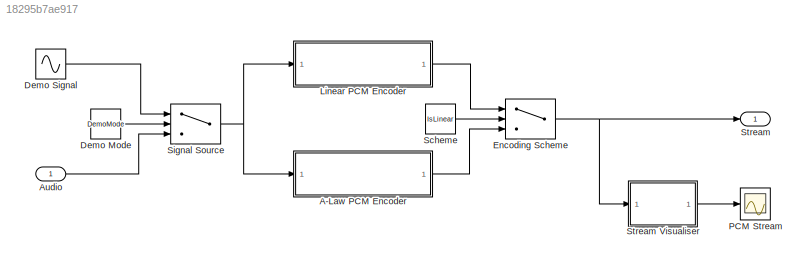
MODEL slx_18295b7ae917
KIND model
CONFIG AbsTol = auto
CONFIG EnableMultiTasking = off
CONFIG FixedStep = 1/(48e-7)
CONFIG MaxStep = 1e-5
CONFIG MinStep = auto
CONFIG RelTol = 1e-3
CONFIG SampleTimeConstraint = Unconstrained
CONFIG SolverName = VariableStepAuto
CONFIG StartTime = 0.0
CONFIG StopTime = 1e-3 - eps
WORKSPACE source: mxarray member
WORKSPACE BitDepth = 4
WORKSPACE DecimationFactor = 3
WORKSPACE DemoMode = 1
WORKSPACE Dithering = 0
WORKSPACE FirDenominatorCoefficients = [1 1]
WORKSPACE FirNumeratorCoefficients = [1 1]
WORKSPACE IsLinear = 1
WORKSPACE LowerSaturation = -2.5
WORKSPACE SampleRate = 48000
WORKSPACE UpperSaturation = 2.5
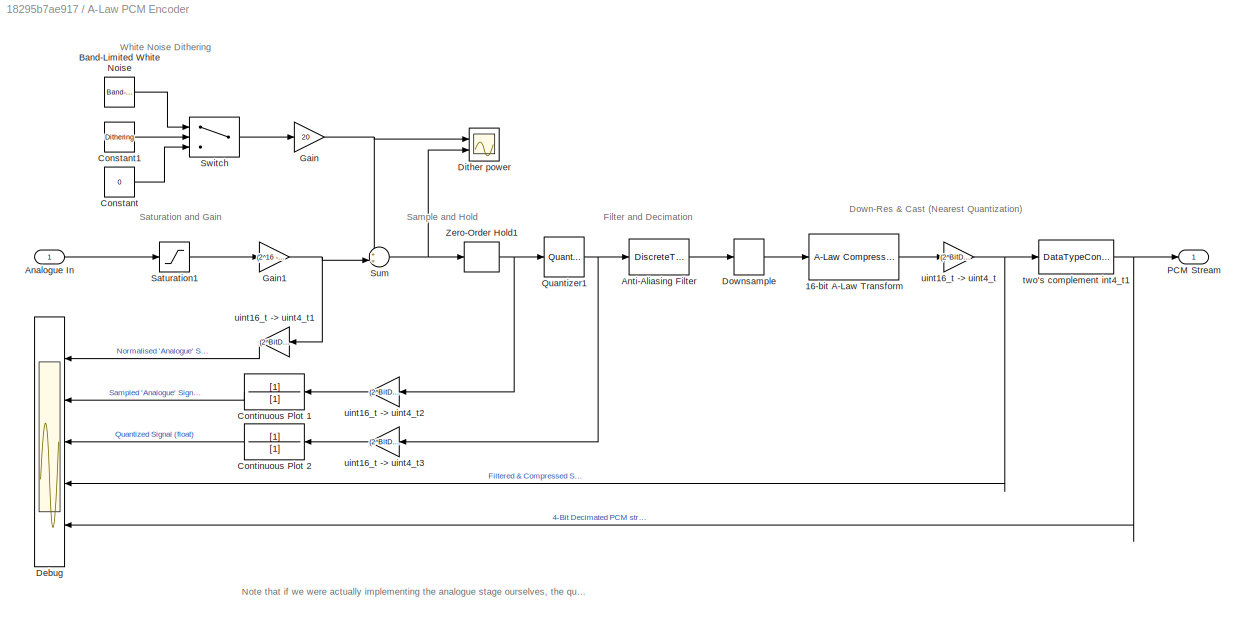
BLOCK [SubSystem] A-Law PCM Encoder
  Ports = [1, 1]
  RequestExecContextInheritance = off
BLOCK [Reference] A-Law PCM Encoder/16-bit A-Law Transform  REF=commsrccod2/A-Law
Compressor
  Ports = [1, 1]
  SourceBlock = commsrccod2/A-Law\nCompressor
  SourceProductBaseCode = CM
  SourceType = A-Law Compressor
BLOCK [Inport] A-Law PCM Encoder/Analogue In
BLOCK [DiscreteTransferFcn] A-Law PCM Encoder/Anti-Aliasing Filter
  Denominator = FirDenominatorCoefficients
  InputPortMap = u0
  Numerator = FirNumeratorCoefficients
  Ports = [1, 1]
BLOCK [Reference] A-Law PCM Encoder/Band-Limited White Noise  REF=simulink/Sources/Band-Limited
White Noise
  Ports = [0, 1]
  SourceBlock = simulink/Sources/Band-Limited\nWhite Noise
  SourceProductBaseCode = SL
  SourceType = Band-Limited White Noise.
BLOCK [Constant] A-Law PCM Encoder/Constant
  SampleTime = 1/SampleRate
  Value = 0
BLOCK [Constant] A-Law PCM Encoder/Constant1
  Value = Dithering
BLOCK [TransferFcn] A-Law PCM Encoder/Continuous Plot 1
  ContinuousStateAttributes = ''Continuous"
  Denominator = [1]
BLOCK [TransferFcn] A-Law PCM Encoder/Continuous Plot 2
  ContinuousStateAttributes = ''Continuous"
  Denominator = [1]
BLOCK [Scope] A-Law PCM Encoder/Debug
  DefaultConfigurationName = spbscopes.TimeScopeBlockCfg
  Floating = off
  NumInputPorts = 5
  Ports = [5]
  ScopeSpecificationString = spbscopes.TimeScopeBlockCfg('CurrentConfiguration', extmgr.ConfigurationSet(extmgr.Configuration('Core','General UI',true,'DisplayFullSourceName',true),extmgr.Configuration('Core','Source UI',true),extmgr.Configuration('Sources','WiredSimulink',true,'DataLoggingVariableName','ScopeData1'),extmgr.Configuration('Visuals','Time Domain',true,'DisplayPropertyDefaults',struct('MinYLimReal','-8.75','MaxY...<+2100ch>
  UserDataPersistent = on
BLOCK [Scope] A-Law PCM Encoder/Dither power
  DefaultConfigurationName = spbscopes.TimeScopeBlockCfg
  Floating = off
  NumInputPorts = 2
  Ports = [2]
  ScopeSpecificationString = spbscopes.TimeScopeBlockCfg('CurrentConfiguration', extmgr.ConfigurationSet(extmgr.Configuration('Core','General UI',true),extmgr.Configuration('Core','Source UI',true),extmgr.Configuration('Sources','WiredSimulink',true,'DataLoggingVariableName','ScopeData1'),extmgr.Configuration('Visuals','Time Domain',true,'DisplayPropertyDefaults',struct('MinYLimReal','-44228.3949','MaxYLimReal','43369.65792',...<+1566ch>
  UserDataPersistent = on
BLOCK [DownSample] A-Law PCM Encoder/Downsample
  InputProcessing = Elements as channels (sample based)
  N = DecimationFactor
  RateOptions = Allow multirate processing
BLOCK [Gain] A-Law PCM Encoder/Gain
  Gain = 20
BLOCK [Gain] A-Law PCM Encoder/Gain1
  Gain = (2^16 - 2)/(UpperSaturation - LowerSaturation)
BLOCK [Outport] A-Law PCM Encoder/PCM Stream
BLOCK [Quantizer] A-Law PCM Encoder/Quantizer1
  LinearizeAsGain = off
  QuantizationInterval = 1
BLOCK [Saturate] A-Law PCM Encoder/Saturation1
  LowerLimit = -2.5
  UpperLimit = 2.5
BLOCK [Sum] A-Law PCM Encoder/Sum
  Inputs = ++|
  Ports = [2, 1]
BLOCK [Switch] A-Law PCM Encoder/Switch
  Criteria = u2 > Threshold
  InputSameDT = off
  SaturateOnIntegerOverflow = off
BLOCK [ZeroOrderHold] A-Law PCM Encoder/Zero-Order Hold1
  SampleTime = 1/SampleRate
BLOCK [DataTypeConversion] A-Law PCM Encoder/two's complement int4_t1
  OutDataTypeStr = int16
  RndMeth = Nearest
  SaturateOnIntegerOverflow = off
BLOCK [Gain] A-Law PCM Encoder/uint16_t -> uint4_t
  Gain = (2^BitDepth - 2)/(2^16 - 2)
BLOCK [Gain] A-Law PCM Encoder/uint16_t -> uint4_t1
  Gain = (2^BitDepth - 2)/(2^16 - 2)
BLOCK [Gain] A-Law PCM Encoder/uint16_t -> uint4_t2
  Gain = (2^BitDepth - 2)/(2^16 - 2)
BLOCK [Gain] A-Law PCM Encoder/uint16_t -> uint4_t3
  Gain = (2^BitDepth - 2)/(2^16 - 2)
BLOCK [Inport] Audio
  SampleTime = 1/SampleRate
BLOCK [Constant] Demo Mode
  Value = DemoMode
BLOCK [Sin] Demo Signal
  Amplitude = 2.4
  Frequency = 2*pi*2000
  Ports = [0, 1]
  SampleTime = 1/SampleRate
BLOCK [Switch] Encoding Scheme
  Criteria = u2 > Threshold
  InputSameDT = off
  SaturateOnIntegerOverflow = off
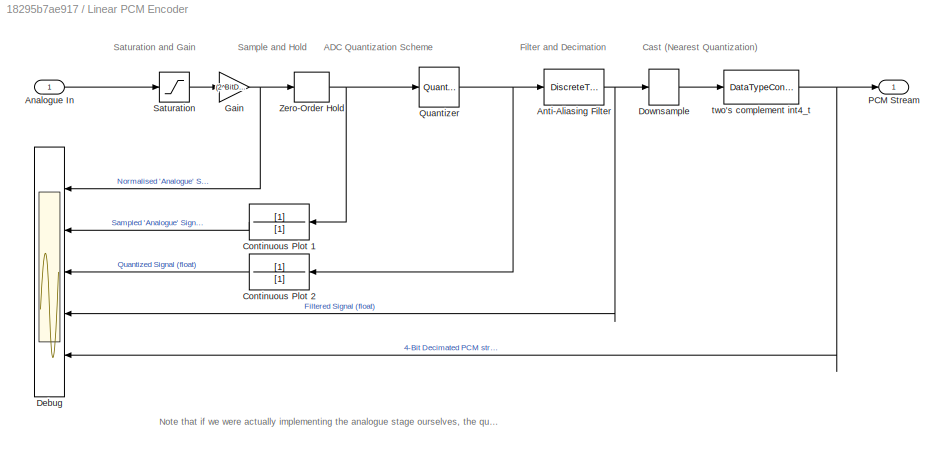
BLOCK [SubSystem] Linear PCM Encoder
  Ports = [1, 1]
  RequestExecContextInheritance = off
BLOCK [Inport] Linear PCM Encoder/Analogue In
BLOCK [DiscreteTransferFcn] Linear PCM Encoder/Anti-Aliasing Filter
  Denominator = FirDenominatorCoefficients
  InputPortMap = u0
  Numerator = FirNumeratorCoefficients
  Ports = [1, 1]
BLOCK [TransferFcn] Linear PCM Encoder/Continuous Plot 1
  ContinuousStateAttributes = ''Continuous"
  Denominator = [1]
BLOCK [TransferFcn] Linear PCM Encoder/Continuous Plot 2
  ContinuousStateAttributes = ''Continuous"
  Denominator = [1]
BLOCK [Scope] Linear PCM Encoder/Debug
  DefaultConfigurationName = spbscopes.TimeScopeBlockCfg
  Floating = off
  NumInputPorts = 5
  Ports = [5]
  ScopeSpecificationString = spbscopes.TimeScopeBlockCfg('CurrentConfiguration', extmgr.ConfigurationSet(extmgr.Configuration('Core','General UI',true,'DisplayFullSourceName',true),extmgr.Configuration('Core','Source UI',true),extmgr.Configuration('Sources','WiredSimulink',true,'DataLoggingVariableName','ScopeData2'),extmgr.Configuration('Visuals','Time Domain',true,'DisplayPropertyDefaults',struct('MinYLimReal','-6.61473','M...<+2152ch>
  UserDataPersistent = on
BLOCK [DownSample] Linear PCM Encoder/Downsample
  InputProcessing = Elements as channels (sample based)
  N = DecimationFactor
  RateOptions = Allow multirate processing
BLOCK [Gain] Linear PCM Encoder/Gain
  Gain = (2^BitDepth - 2)/(UpperSaturation - LowerSaturation)
BLOCK [Outport] Linear PCM Encoder/PCM Stream
BLOCK [Quantizer] Linear PCM Encoder/Quantizer
  LinearizeAsGain = off
  QuantizationInterval = 1
BLOCK [Saturate] Linear PCM Encoder/Saturation
  LowerLimit = -2.5
  UpperLimit = 2.5
BLOCK [ZeroOrderHold] Linear PCM Encoder/Zero-Order Hold
  SampleTime = 1/SampleRate
BLOCK [DataTypeConversion] Linear PCM Encoder/two's complement int4_t
  OutDataTypeStr = int16
  RndMeth = Nearest
  SaturateOnIntegerOverflow = off
BLOCK [Scope] PCM Stream
  Floating = off
  NumInputPorts = 1
  Ports = [1]
  ScopeSpecificationString = Simulink.scopes.TimeScopeBlockCfg('CurrentConfiguration', extmgr.ConfigurationSet(extmgr.Configuration('Core','General UI',true,'DisplayFullSourceName',true),extmgr.Configuration('Core','Source UI',true),extmgr.Configuration('Sources','WiredSimulink',true,'DataLoggingVariableName','ScopeData1'),extmgr.Configuration('Visuals','Time Domain',true,'SerializedDisplays',{struct('MinYLimReal','-0.875','M...<+1570ch>
BLOCK [Constant] Scheme
  Value = IsLinear
BLOCK [Switch] Signal Source
  Criteria = u2 > Threshold
  InputSameDT = off
  SaturateOnIntegerOverflow = off
BLOCK [Outport] Stream
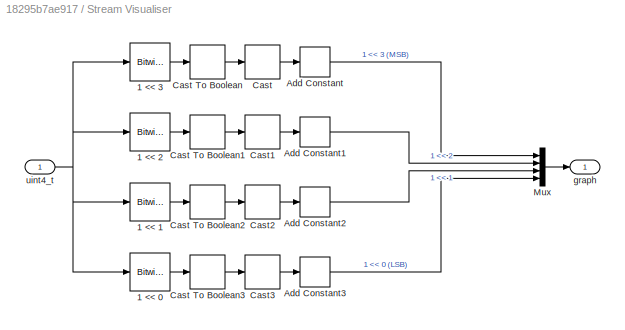
BLOCK [SubSystem] Stream Visualiser
  Ports = [1, 1]
  RequestExecContextInheritance = off
BLOCK [Reference] Stream Visualiser/1 << 0  REF=simulink/Logic and Bit
Operations/Bitwise
Operator
  Ports = [1, 1]
  SourceBlock = simulink/Logic and Bit\nOperations/Bitwise\nOperator
  SourceProductBaseCode = SL
  SourceType = Bitwise Operator
BLOCK [Reference] Stream Visualiser/1 << 1  REF=simulink/Logic and Bit
Operations/Bitwise
Operator
  Ports = [1, 1]
  SourceBlock = simulink/Logic and Bit\nOperations/Bitwise\nOperator
  SourceProductBaseCode = SL
  SourceType = Bitwise Operator
BLOCK [Reference] Stream Visualiser/1 << 2  REF=simulink/Logic and Bit
Operations/Bitwise
Operator
  Ports = [1, 1]
  SourceBlock = simulink/Logic and Bit\nOperations/Bitwise\nOperator
  SourceProductBaseCode = SL
  SourceType = Bitwise Operator
BLOCK [Reference] Stream Visualiser/1 << 3  REF=simulink/Logic and Bit
Operations/Bitwise
Operator
  Ports = [1, 1]
  SourceBlock = simulink/Logic and Bit\nOperations/Bitwise\nOperator
  SourceProductBaseCode = SL
  SourceType = Bitwise Operator
BLOCK [Bias] Stream Visualiser/Add Constant
  Bias = 6
  SaturateOnIntegerOverflow = off
BLOCK [Bias] Stream Visualiser/Add Constant1
  Bias = 4
  SaturateOnIntegerOverflow = off
BLOCK [Bias] Stream Visualiser/Add Constant2
  Bias = 2
  SaturateOnIntegerOverflow = off
BLOCK [Bias] Stream Visualiser/Add Constant3
  SaturateOnIntegerOverflow = off
BLOCK [DataTypeConversion] Stream Visualiser/Cast
  OutDataTypeStr = int16
  RndMeth = Floor
  SaturateOnIntegerOverflow = off
BLOCK [DataTypeConversion] Stream Visualiser/Cast To Boolean
  OutDataTypeStr = boolean
  RndMeth = Floor
  SaturateOnIntegerOverflow = off
BLOCK [DataTypeConversion] Stream Visualiser/Cast To Boolean1
  OutDataTypeStr = boolean
  RndMeth = Floor
  SaturateOnIntegerOverflow = off
BLOCK [DataTypeConversion] Stream Visualiser/Cast To Boolean2
  OutDataTypeStr = boolean
  RndMeth = Floor
  SaturateOnIntegerOverflow = off
BLOCK [DataTypeConversion] Stream Visualiser/Cast To Boolean3
  OutDataTypeStr = boolean
  RndMeth = Floor
  SaturateOnIntegerOverflow = off
BLOCK [DataTypeConversion] Stream Visualiser/Cast1
  OutDataTypeStr = int16
  RndMeth = Floor
  SaturateOnIntegerOverflow = off
BLOCK [DataTypeConversion] Stream Visualiser/Cast2
  OutDataTypeStr = int16
  RndMeth = Floor
  SaturateOnIntegerOverflow = off
BLOCK [DataTypeConversion] Stream Visualiser/Cast3
  OutDataTypeStr = int16
  RndMeth = Floor
  SaturateOnIntegerOverflow = off
BLOCK [Mux] Stream Visualiser/Mux
  DisplayOption = bar
  Ports = [4, 1]
BLOCK [Outport] Stream Visualiser/graph
BLOCK [Inport] Stream Visualiser/uint4_t
ANNOTATION A-Law PCM Encoder: Down-Res & Cast (Nearest Quantization)
ANNOTATION A-Law PCM Encoder: Filter and Decimation
ANNOTATION A-Law PCM Encoder: Note that if we were actually implementing the analogue stage ourselves, the quantization steps would be not be 'pre-scaled' to integer increments. As our input signal is 'simulated' as a sampled voltage, this demo scales the signal to full-scale at the specified bit-depth prior to sampling for convenience.
ANNOTATION A-Law PCM Encoder: Sample and Hold
ANNOTATION A-Law PCM Encoder: Saturation and Gain
ANNOTATION A-Law PCM Encoder: White Noise Dithering
ANNOTATION Linear PCM Encoder: ADC Quantization Scheme
ANNOTATION Linear PCM Encoder: Cast (Nearest Quantization)
ANNOTATION Linear PCM Encoder: Filter and Decimation
ANNOTATION Linear PCM Encoder: Note that if we were actually implementing the analogue stage ourselves, the quantization steps would be not be 'pre-scaled' to integer increments. As our input signal is 'simulated' as a sampled voltage, this demo scales the signal to full-scale at the specified bit-depth prior to sampling for convenience.
ANNOTATION Linear PCM Encoder: Sample and Hold
ANNOTATION Linear PCM Encoder: Saturation and Gain
LINE A-Law PCM Encoder/16-bit A-Law Transform:1 -> A-Law PCM Encoder/uint16_t -> uint4_t:1
LINE A-Law PCM Encoder/Analogue In:1 -> A-Law PCM Encoder/Saturation1:1
LINE A-Law PCM Encoder/Anti-Aliasing Filter:1 -> A-Law PCM Encoder/Downsample:1
LINE A-Law PCM Encoder/Band-Limited White Noise:1 -> A-Law PCM Encoder/Switch:1
LINE A-Law PCM Encoder/Constant1:1 -> A-Law PCM Encoder/Switch:2
LINE A-Law PCM Encoder/Constant:1 -> A-Law PCM Encoder/Switch:3
LINE A-Law PCM Encoder/Continuous Plot 1:1 -> A-Law PCM Encoder/Debug:2
LINE A-Law PCM Encoder/Continuous Plot 2:1 -> A-Law PCM Encoder/Debug:3
LINE A-Law PCM Encoder/Downsample:1 -> A-Law PCM Encoder/16-bit A-Law Transform:1
NET A-Law PCM Encoder/Gain1:1 -> A-Law PCM Encoder/Sum:2, A-Law PCM Encoder/uint16_t -> uint4_t1:1
NET A-Law PCM Encoder/Gain:1 -> A-Law PCM Encoder/Dither power:1, A-Law PCM Encoder/Sum:1
NET A-Law PCM Encoder/Quantizer1:1 -> A-Law PCM Encoder/Anti-Aliasing Filter:1, A-Law PCM Encoder/uint16_t -> uint4_t3:1
LINE A-Law PCM Encoder/Saturation1:1 -> A-Law PCM Encoder/Gain1:1
NET A-Law PCM Encoder/Sum:1 -> A-Law PCM Encoder/Dither power:2, A-Law PCM Encoder/Zero-Order Hold1:1
LINE A-Law PCM Encoder/Switch:1 -> A-Law PCM Encoder/Gain:1
NET A-Law PCM Encoder/Zero-Order Hold1:1 -> A-Law PCM Encoder/Quantizer1:1, A-Law PCM Encoder/uint16_t -> uint4_t2:1
NET A-Law PCM Encoder/two's complement int4_t1:1 -> A-Law PCM Encoder/Debug:5, A-Law PCM Encoder/PCM Stream:1
LINE A-Law PCM Encoder/uint16_t -> uint4_t1:1 -> A-Law PCM Encoder/Debug:1
LINE A-Law PCM Encoder/uint16_t -> uint4_t2:1 -> A-Law PCM Encoder/Continuous Plot 1:1
LINE A-Law PCM Encoder/uint16_t -> uint4_t3:1 -> A-Law PCM Encoder/Continuous Plot 2:1
NET A-Law PCM Encoder/uint16_t -> uint4_t:1 -> A-Law PCM Encoder/Debug:4, A-Law PCM Encoder/two's complement int4_t1:1
LINE A-Law PCM Encoder:1 -> Encoding Scheme:3
LINE Audio:1 -> Signal Source:3
LINE Demo Mode:1 -> Signal Source:2
LINE Demo Signal:1 -> Signal Source:1
NET Encoding Scheme:1 -> Stream Visualiser:1, Stream:1
LINE Linear PCM Encoder/Analogue In:1 -> Linear PCM Encoder/Saturation:1
NET Linear PCM Encoder/Anti-Aliasing Filter:1 -> Linear PCM Encoder/Debug:4, Linear PCM Encoder/Downsample:1
LINE Linear PCM Encoder/Continuous Plot 1:1 -> Linear PCM Encoder/Debug:2
LINE Linear PCM Encoder/Continuous Plot 2:1 -> Linear PCM Encoder/Debug:3
LINE Linear PCM Encoder/Downsample:1 -> Linear PCM Encoder/two's complement int4_t:1
NET Linear PCM Encoder/Gain:1 -> Linear PCM Encoder/Debug:1, Linear PCM Encoder/Zero-Order Hold:1
NET Linear PCM Encoder/Quantizer:1 -> Linear PCM Encoder/Anti-Aliasing Filter:1, Linear PCM Encoder/Continuous Plot 2:1
LINE Linear PCM Encoder/Saturation:1 -> Linear PCM Encoder/Gain:1
NET Linear PCM Encoder/Zero-Order Hold:1 -> Linear PCM Encoder/Continuous Plot 1:1, Linear PCM Encoder/Quantizer:1
NET Linear PCM Encoder/two's complement int4_t:1 -> Linear PCM Encoder/Debug:5, Linear PCM Encoder/PCM Stream:1
LINE Linear PCM Encoder:1 -> Encoding Scheme:1
LINE Scheme:1 -> Encoding Scheme:2
NET Signal Source:1 -> A-Law PCM Encoder:1, Linear PCM Encoder:1
LINE Stream Visualiser/1 << 0:1 -> Stream Visualiser/Cast To Boolean3:1
LINE Stream Visualiser/1 << 1:1 -> Stream Visualiser/Cast To Boolean2:1
LINE Stream Visualiser/1 << 2:1 -> Stream Visualiser/Cast To Boolean1:1
LINE Stream Visualiser/1 << 3:1 -> Stream Visualiser/Cast To Boolean:1
LINE Stream Visualiser/Add Constant1:1 -> Stream Visualiser/Mux:2
LINE Stream Visualiser/Add Constant2:1 -> Stream Visualiser/Mux:3
LINE Stream Visualiser/Add Constant3:1 -> Stream Visualiser/Mux:4
LINE Stream Visualiser/Add Constant:1 -> Stream Visualiser/Mux:1
LINE Stream Visualiser/Cast To Boolean1:1 -> Stream Visualiser/Cast1:1
LINE Stream Visualiser/Cast To Boolean2:1 -> Stream Visualiser/Cast2:1
LINE Stream Visualiser/Cast To Boolean3:1 -> Stream Visualiser/Cast3:1
LINE Stream Visualiser/Cast To Boolean:1 -> Stream Visualiser/Cast:1
LINE Stream Visualiser/Cast1:1 -> Stream Visualiser/Add Constant1:1
LINE Stream Visualiser/Cast2:1 -> Stream Visualiser/Add Constant2:1
LINE Stream Visualiser/Cast3:1 -> Stream Visualiser/Add Constant3:1
LINE Stream Visualiser/Cast:1 -> Stream Visualiser/Add Constant:1
LINE Stream Visualiser/Mux:1 -> Stream Visualiser/graph:1
NET Stream Visualiser/uint4_t:1 -> Stream Visualiser/1 << 0:1, Stream Visualiser/1 << 1:1, Stream Visualiser/1 << 2:1, Stream Visualiser/1 << 3:1
LINE Stream Visualiser:1 -> PCM Stream:1
note: NET lines group one-source signal fan-out (src -> all destinations, sorted); 1:1 wires keep LINE
